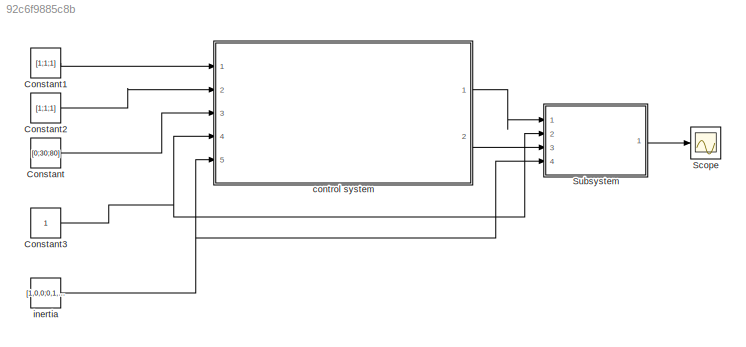
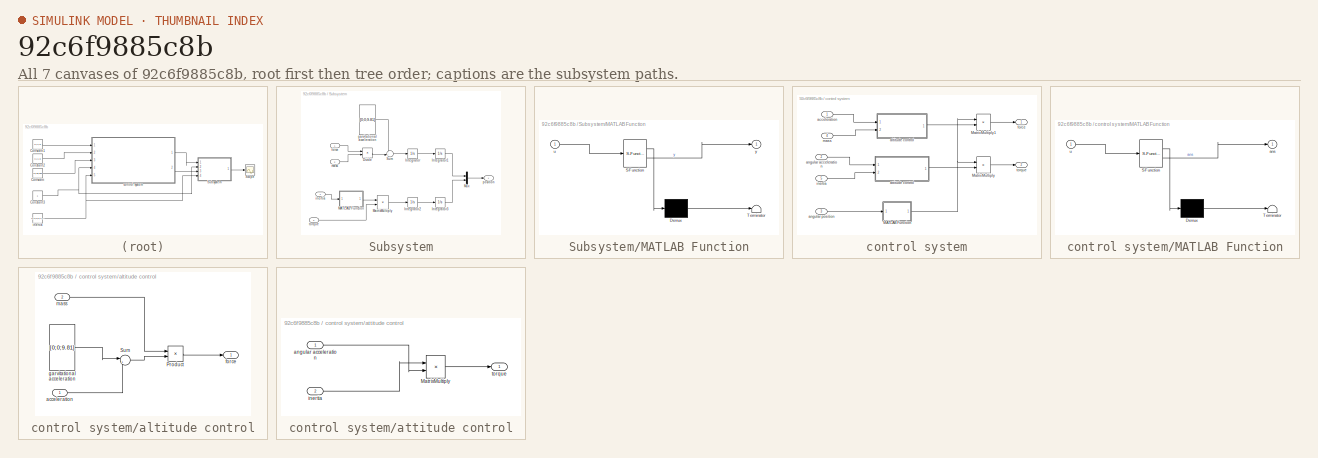
[diagram: thumbnail index - all 7 canvases of the model, root first then tree order]
MODEL slx_92c6f9885c8b
KIND model
CONFIG AbsTol = auto
CONFIG EnableMultiTasking = off
CONFIG FixedStep = auto
CONFIG MaxStep = auto
CONFIG MinStep = auto
CONFIG RelTol = 1e-3
CONFIG SampleTimeConstraint = Unconstrained
CONFIG SolverName = VariableStepAuto
CONFIG StartTime = 0.0
CONFIG StopTime = 10.0
BLOCK [Constant] Constant
  Value = [0;30;80]
  VectorParams1D = off
BLOCK [Constant] Constant1
  Value = [1;1;1]
  VectorParams1D = off
BLOCK [Constant] Constant2
  Value = [1;1;1]
  VectorParams1D = off
BLOCK [Constant] Constant3
BLOCK [Scope] Scope
  Floating = off
  NumInputPorts = 1
  Ports = [1]
  ScopeSpecificationString = Simulink.scopes.TimeScopeBlockCfg('CurrentConfiguration', extmgr.ConfigurationSet(extmgr.Configuration('Core','General UI',true),extmgr.Configuration('Core','Source UI',true),extmgr.Configuration('Sources','WiredSimulink',true),extmgr.Configuration('Visuals','Time Domain',true),extmgr.Configuration('Tools','Plot Navigation',true),extmgr.Configuration('Tools','Measurements',true)),'Version','2021a'...<+1ch>
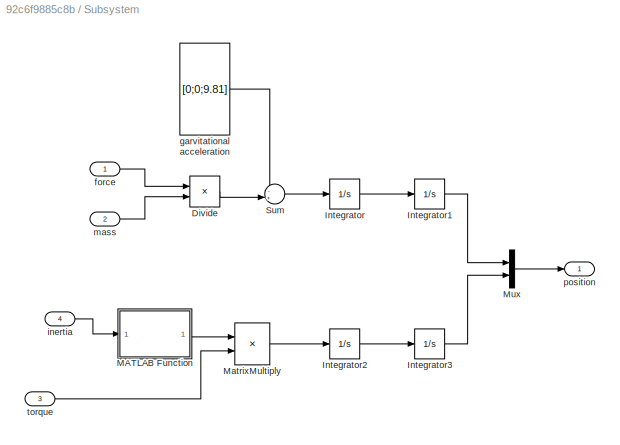
BLOCK [SubSystem] Subsystem
  Ports = [4, 1]
  RequestExecContextInheritance = off
BLOCK [Product] Subsystem/Divide
  Inputs = */
  Ports = [2, 1]
BLOCK [Integrator] Subsystem/Integrator
  Ports = [1, 1]
BLOCK [Integrator] Subsystem/Integrator1
  Ports = [1, 1]
BLOCK [Integrator] Subsystem/Integrator2
  Ports = [1, 1]
BLOCK [Integrator] Subsystem/Integrator3
  Ports = [1, 1]
BLOCK [SubSystem] Subsystem/MATLAB Function
  ErrorFcn = Stateflow.Translate.translate
  PermitHierarchicalResolution = ExplicitOnly
  Ports = [1, 1]
  RequestExecContextInheritance = off
  SFBlockType = MATLAB Function
  TreatAsAtomicUnit = on
BLOCK [Demux] Subsystem/MATLAB Function/ Demux 
  Outputs = 1
  Ports = [1, 1]
BLOCK [S-Function] Subsystem/MATLAB Function/ SFunction 
  EnableBusSupport = on
  FunctionName = sf_sfun
  PortCounts = [1 2]
  Ports = [1, 2]
  SFcnIsStateOwnerBlock = off
  SFunctionDeploymentMode = off
  Tag = Stateflow S-Function 1
BLOCK [Terminator] Subsystem/MATLAB Function/ Terminator 
BLOCK [Inport] Subsystem/MATLAB Function/u
BLOCK [Outport] Subsystem/MATLAB Function/y
BLOCK [Product] Subsystem/MatrixMultiply
  Multiplication = Matrix(*)
  Ports = [2, 1]
BLOCK [Mux] Subsystem/Mux
  DisplayOption = bar
  Inputs = 2
  Ports = [2, 1]
BLOCK [Sum] Subsystem/Sum
  Inputs = -+|
  Ports = [2, 1]
BLOCK [Inport] Subsystem/force
BLOCK [Constant] Subsystem/garvitational acceleration
  Value = [0;0;9.81]
  VectorParams1D = off
BLOCK [Inport] Subsystem/inertia
  Port = 4
BLOCK [Inport] Subsystem/mass
  Port = 2
BLOCK [Outport] Subsystem/position
BLOCK [Inport] Subsystem/torque
  Port = 3
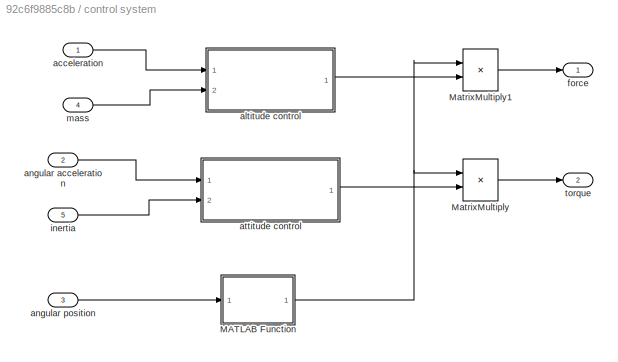
BLOCK [SubSystem] control system
  Ports = [5, 2]
  RequestExecContextInheritance = off
BLOCK [SubSystem] control system/MATLAB Function
  ErrorFcn = Stateflow.Translate.translate
  PermitHierarchicalResolution = ExplicitOnly
  Ports = [1, 1]
  RequestExecContextInheritance = off
  SFBlockType = MATLAB Function
  TreatAsAtomicUnit = on
BLOCK [Demux] control system/MATLAB Function/ Demux 
  Outputs = 1
  Ports = [1, 1]
BLOCK [S-Function] control system/MATLAB Function/ SFunction 
  EnableBusSupport = on
  FunctionName = sf_sfun
  PortCounts = [1 2]
  Ports = [1, 2]
  SFcnIsStateOwnerBlock = off
  SFunctionDeploymentMode = off
  Tag = Stateflow S-Function 2
BLOCK [Terminator] control system/MATLAB Function/ Terminator 
BLOCK [Outport] control system/MATLAB Function/ans
BLOCK [Inport] control system/MATLAB Function/u
BLOCK [Product] control system/MatrixMultiply
  Multiplication = Matrix(*)
  Ports = [2, 1]
BLOCK [Product] control system/MatrixMultiply1
  Multiplication = Matrix(*)
  Ports = [2, 1]
BLOCK [Inport] control system/acceleration
BLOCK [SubSystem] control system/altitude control
  Ports = [2, 1]
  RequestExecContextInheritance = off
BLOCK [Product] control system/altitude control/Product
  Ports = [2, 1]
BLOCK [Sum] control system/altitude control/Sum
  Inputs = |++
  Ports = [2, 1]
BLOCK [Inport] control system/altitude control/acceleration
BLOCK [Outport] control system/altitude control/force
BLOCK [Constant] control system/altitude control/garvitational acceleration
  Value = [0;0;9.81]
  VectorParams1D = off
BLOCK [Inport] control system/altitude control/mass
  Port = 2
BLOCK [Inport] control system/angular acceleration
  Port = 2
BLOCK [Inport] control system/angular position
  Port = 3
BLOCK [SubSystem] control system/attitude control
  Ports = [2, 1]
  RequestExecContextInheritance = off
BLOCK [Product] control system/attitude control/MatrixMultiply
  Multiplication = Matrix(*)
  Ports = [2, 1]
BLOCK [Inport] control system/attitude control/angular acceleration
BLOCK [Inport] control system/attitude control/inertia
  Port = 2
BLOCK [Outport] control system/attitude control/torque
BLOCK [Outport] control system/force
BLOCK [Inport] control system/inertia
  Port = 5
BLOCK [Inport] control system/mass
  Port = 4
BLOCK [Outport] control system/torque
  Port = 2
BLOCK [Constant] inertia
  Value = [1,0,0;0,1,0;0,0,1]
  VectorParams1D = off
LINE Constant1:1 -> control system:1
LINE Constant2:1 -> control system:2
NET Constant3:1 -> Subsystem:2, control system:4
LINE Constant:1 -> control system:3
LINE Subsystem/Divide:1 -> Subsystem/Sum:2
LINE Subsystem/Integrator1:1 -> Subsystem/Mux:1
LINE Subsystem/Integrator2:1 -> Subsystem/Integrator3:1
LINE Subsystem/Integrator3:1 -> Subsystem/Mux:2
LINE Subsystem/Integrator:1 -> Subsystem/Integrator1:1
LINE Subsystem/MATLAB Function:1 -> Subsystem/MatrixMultiply:1
LINE Subsystem/MatrixMultiply:1 -> Subsystem/Integrator2:1
LINE Subsystem/Mux:1 -> Subsystem/position:1
LINE Subsystem/Sum:1 -> Subsystem/Integrator:1
LINE Subsystem/force:1 -> Subsystem/Divide:1
LINE Subsystem/garvitational acceleration:1 -> Subsystem/Sum:1
LINE Subsystem/inertia:1 -> Subsystem/MATLAB Function:1
LINE Subsystem/mass:1 -> Subsystem/Divide:2
LINE Subsystem/torque:1 -> Subsystem/MatrixMultiply:2
LINE Subsystem:1 -> Scope:1
NET control system/MATLAB Function:1 -> control system/MatrixMultiply1:1, control system/MatrixMultiply:1
LINE control system/MatrixMultiply1:1 -> control system/force:1
LINE control system/MatrixMultiply:1 -> control system/torque:1
LINE control system/acceleration:1 -> control system/altitude control:1
LINE control system/altitude control/Product:1 -> control system/altitude control/force:1
LINE control system/altitude control/Sum:1 -> control system/altitude control/Product:2
LINE control system/altitude control/acceleration:1 -> control system/altitude control/Sum:2
LINE control system/altitude control/garvitational acceleration:1 -> control system/altitude control/Sum:1
LINE control system/altitude control/mass:1 -> control system/altitude control/Product:1
LINE control system/altitude control:1 -> control system/MatrixMultiply1:2
LINE control system/angular acceleration:1 -> control system/attitude control:1
LINE control system/angular position:1 -> control system/MATLAB Function:1
LINE control system/attitude control/MatrixMultiply:1 -> control system/attitude control/torque:1
LINE control system/attitude control/angular acceleration:1 -> control system/attitude control/MatrixMultiply:2
LINE control system/attitude control/inertia:1 -> control system/attitude control/MatrixMultiply:1
LINE control system/attitude control:1 -> control system/MatrixMultiply:2
LINE control system/inertia:1 -> control system/attitude control:2
LINE control system/mass:1 -> control system/altitude control:2
LINE control system:1 -> Subsystem:1
LINE control system:2 -> Subsystem:3
NET inertia:1 -> Subsystem:4, control system:5
note: NET lines group one-source signal fan-out (src -> all destinations, sorted); 1:1 wires keep LINE
CHART control system/MATLAB Function states=1 transitions=1
  STATE_LABEL 'eML_blk_kernel()'
  STATE_LABEL 'SCRIPT:\nfunction ans = rotationMatrix(u)\n    r = u(1);\n    p = u(2);\n    y = u(3);\n    ans = [cos(y)*cos(r), (-sin(y)*cos(r)) + (cos(y)*sin(p)*sin(r)), sin(y)*sin(r) + cos(y)*sin(p)*cos(r);sin(y)*cos(p), cos(y)*cos(r)+sin(y)*sin(p)*sin(r), -cos(y)*sin(r) + sin(y)*sin(p)*cos(r);-sin(p),cos(p)*sin(r),cos(p)*cos(r)];\nans;\n'
CHART Subsystem/MATLAB Function states=1 transitions=1
  STATE_LABEL 'eML_blk_kernel()'
  STATE_LABEL 'SCRIPT:\nfunction y = inverseMatrix(u)\n\ny = inv(u);\n'
CHART  states=0 transitions=0
CHART  states=0 transitions=0
